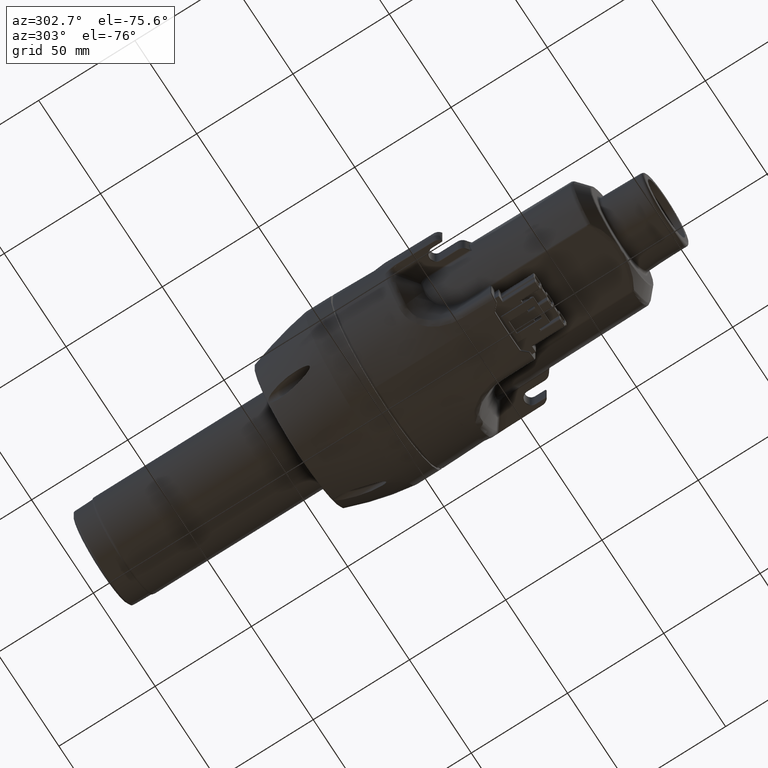
[diagram: clean part render]
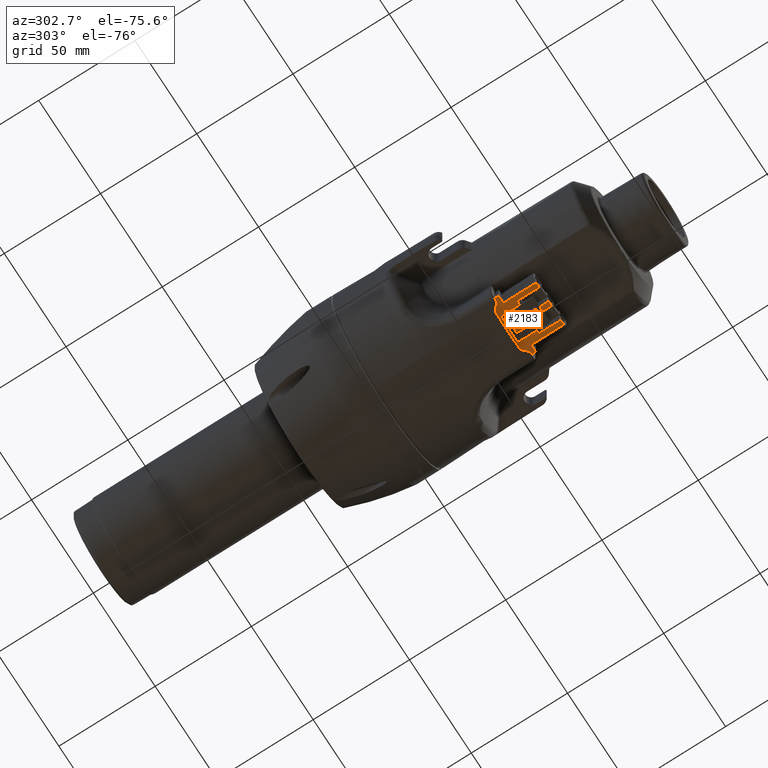
[diagram: same view with one face highlighted and labeled with its STEP entity id]
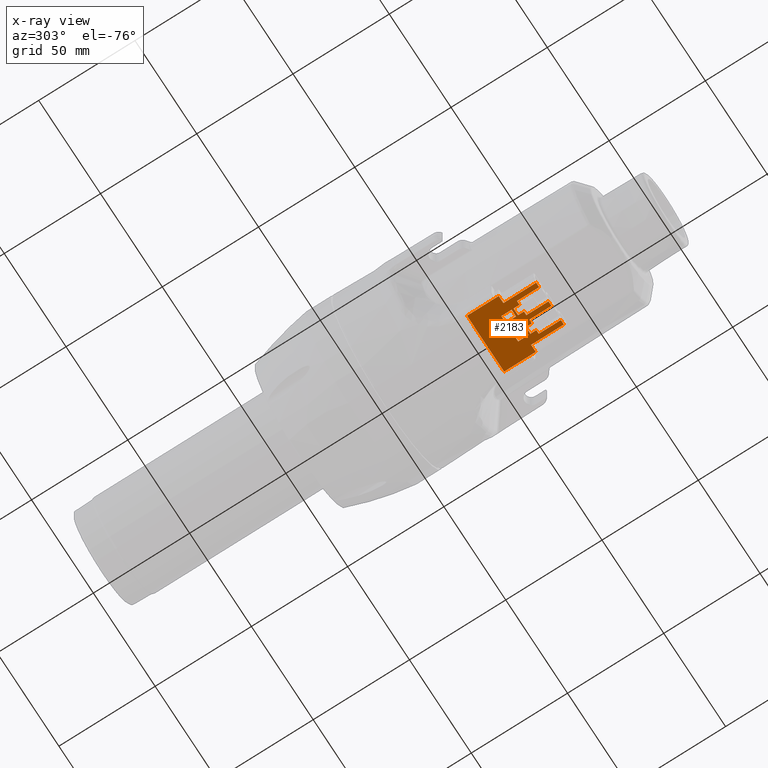
[diagram: x-ray of the same camera — body ghosted, the highlighted face saturated]
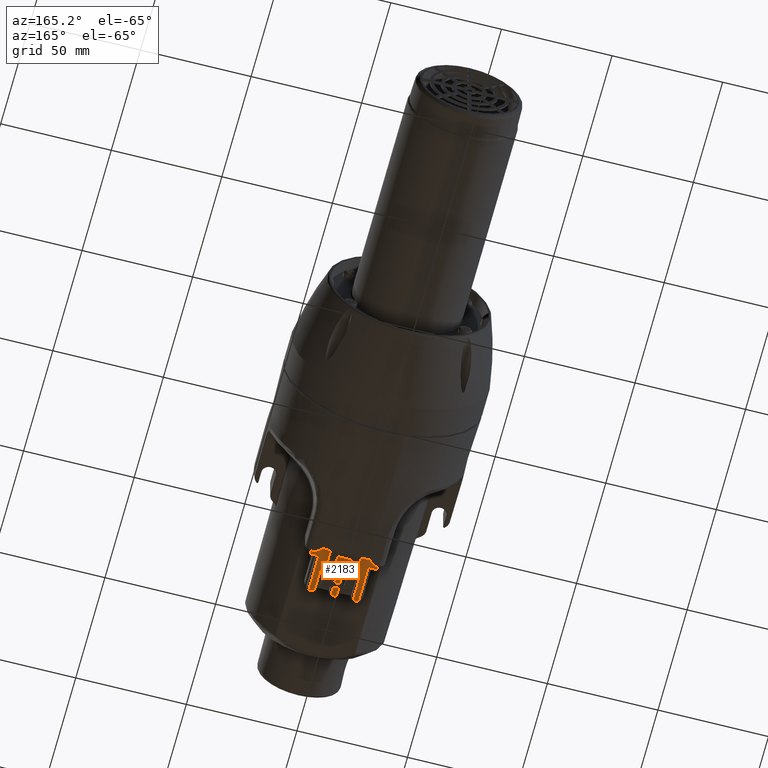
[diagram: same view with one face highlighted and labeled with its STEP entity id]
A machine part, auxiliary view. The second image highlights one B-rep face of the part: STEP entity #2183.
The next image is the same camera in x-ray: the body ghosted, the highlighted face saturated — about 0% of this face is hidden behind the body in this view.
A second angle (auxiliary view) of the same face is appended — the face is thin or edge-on in the first view.
In plain terms, the highlighted planar face has unit normal (0, 0, -1).
Its self-contained STEP definition (entity closure, byte-faithful):
#2183 = ADVANCED_FACE( '', ( #4686, #4687, #4688 ), #4689, .T. );
#4686 = FACE_OUTER_BOUND( '', #10891, .T. );
#4687 = FACE_BOUND( '', #10892, .T. );
#4688 = FACE_BOUND( '', #10893, .T. );
#4689 = PLANE( '', #10894 );
#10891 = EDGE_LOOP( '', ( #18675, #18676, #18677, #18678, #18679, #18680, #18681, #18682, #18683, #18684, #18685, #18686, #18687, #18688, #18689, #18690, #18691, #18692, #18693, #18694, #18695, #18696, #18697, #18698 ) );
#10892 = EDGE_LOOP( '', ( #18699, #18700, #18701, #18702 ) );
#10893 = EDGE_LOOP( '', ( #18703, #18704, #18705, #18706 ) );
#10894 = AXIS2_PLACEMENT_3D( '', #18707, #18708, #18709 );
#18675 = ORIENTED_EDGE( '', *, *, #23581, .F. );
#18676 = ORIENTED_EDGE( '', *, *, #22297, .F. );
#18677 = ORIENTED_EDGE( '', *, *, #22935, .T. );
#18678 = ORIENTED_EDGE( '', *, *, #21340, .T. );
#18679 = ORIENTED_EDGE( '', *, *, #23987, .F. );
#18680 = ORIENTED_EDGE( '', *, *, #23988, .T. );
#18681 = ORIENTED_EDGE( '', *, *, #23989, .F. );
#18682 = ORIENTED_EDGE( '', *, *, #23990, .T. );
#18683 = ORIENTED_EDGE( '', *, *, #22265, .F. );
#18684 = ORIENTED_EDGE( '', *, *, #23991, .T. );
#18685 = ORIENTED_EDGE( '', *, *, #23992, .T. );
#18686 = ORIENTED_EDGE( '', *, *, #21332, .T. );
#18687 = ORIENTED_EDGE( '', *, *, #21533, .F. );
#18688 = ORIENTED_EDGE( '', *, *, #22554, .T. );
#18689 = ORIENTED_EDGE( '', *, *, #21604, .F. );
#18690 = ORIENTED_EDGE( '', *, *, #23960, .T. );
#18691 = ORIENTED_EDGE( '', *, *, #21215, .T. );
#18692 = ORIENTED_EDGE( '', *, *, #22556, .T. );
#18693 = ORIENTED_EDGE( '', *, *, #22513, .T. );
#18694 = ORIENTED_EDGE( '', *, *, #21324, .T. );
#18695 = ORIENTED_EDGE( '', *, *, #23572, .F. );
#18696 = ORIENTED_EDGE( '', *, *, #22725, .F. );
#18697 = ORIENTED_EDGE( '', *, *, #23993, .T. );
#18698 = ORIENTED_EDGE( '', *, *, #23668, .T. );
#18699 = ORIENTED_EDGE( '', *, *, #21602, .F. );
#18700 = ORIENTED_EDGE( '', *, *, #23366, .T. );
#18701 = ORIENTED_EDGE( '', *, *, #21195, .T. );
#18702 = ORIENTED_EDGE( '', *, *, #21425, .F. );
#18703 = ORIENTED_EDGE( '', *, *, #22267, .F. );
#18704 = ORIENTED_EDGE( '', *, *, #22175, .F. );
#18705 = ORIENTED_EDGE( '', *, *, #23994, .F. );
#18706 = ORIENTED_EDGE( '', *, *, #23363, .T. );
#18707 = CARTESIAN_POINT( '', ( -15.0000000000010, -49.7000000000044, -40.1999999999916 ) );
#18708 = DIRECTION( '', ( 0.000000000000000, 0.000000000000000, -1.00000000000000 ) );
#18709 = DIRECTION( '', ( 0.000000000000000, -1.00000000000000, 0.000000000000000 ) );
#21195 = EDGE_CURVE( '', #24652, #24649, #24653, .T. );
#21215 = EDGE_CURVE( '', #24692, #24690, #24693, .T. );
#21324 = EDGE_CURVE( '', #24892, #24890, #24893, .T. );
#21332 = EDGE_CURVE( '', #24908, #24906, #24909, .T. );
#21340 = EDGE_CURVE( '', #24924, #24922, #24925, .T. );
#21425 = EDGE_CURVE( '', #25083, #24649, #25085, .T. );
#21533 = EDGE_CURVE( '', #25270, #24906, #25271, .T. );
#21602 = EDGE_CURVE( '', #25395, #25083, #25397, .T. );
#21604 = EDGE_CURVE( '', #25398, #25400, #25401, .T. );
#22175 = EDGE_CURVE( '', #26346, #26348, #26349, .T. );
#22265 = EDGE_CURVE( '', #26486, #26488, #26489, .T. );
#22267 = EDGE_CURVE( '', #26348, #26491, #26492, .T. );
#22297 = EDGE_CURVE( '', #26535, #26537, #26538, .T. );
#22513 = EDGE_CURVE( '', #26890, #24892, #26891, .T. );
#22554 = EDGE_CURVE( '', #25270, #25400, #26957, .T. );
#22556 = EDGE_CURVE( '', #24690, #26890, #26959, .T. );
#22725 = EDGE_CURVE( '', #27216, #27217, #27218, .T. );
#22935 = EDGE_CURVE( '', #26535, #24924, #27537, .T. );
#23363 = EDGE_CURVE( '', #28178, #26491, #28179, .T. );
#23366 = EDGE_CURVE( '', #25395, #24652, #28183, .T. );
#23572 = EDGE_CURVE( '', #27217, #24890, #28447, .T. );
#23581 = EDGE_CURVE( '', #26537, #28457, #28458, .T. );
#23668 = EDGE_CURVE( '', #28573, #28457, #28574, .T. );
#23960 = EDGE_CURVE( '', #25398, #24692, #28943, .F. );
#23987 = EDGE_CURVE( '', #28975, #24922, #28976, .T. );
#23988 = EDGE_CURVE( '', #28975, #28977, #28978, .T. );
#23989 = EDGE_CURVE( '', #28979, #28977, #28980, .T. );
#23990 = EDGE_CURVE( '', #28979, #26488, #28981, .F. );
#23991 = EDGE_CURVE( '', #26486, #28982, #28983, .T. );
#23992 = EDGE_CURVE( '', #28982, #24908, #28984, .T. );
#23993 = EDGE_CURVE( '', #27216, #28573, #28985, .T. );
#23994 = EDGE_CURVE( '', #28178, #26346, #28986, .T. );
#24649 = VERTEX_POINT( '', #30060 );
#24652 = VERTEX_POINT( '', #30064 );
#24653 = LINE( '', #30065, #30066 );
#24690 = VERTEX_POINT( '', #30115 );
#24692 = VERTEX_POINT( '', #30118 );
#24693 = LINE( '', #30119, #30120 );
#24890 = VERTEX_POINT( '', #30428 );
#24892 = VERTEX_POINT( '', #30430 );
#24893 = LINE( '', #30431, #30432 );
#24906 = VERTEX_POINT( '', #30448 );
#24908 = VERTEX_POINT( '', #30450 );
#24909 = LINE( '', #30451, #30452 );
#24922 = VERTEX_POINT( '', #30468 );
#24924 = VERTEX_POINT( '', #30470 );
#24925 = LINE( '', #30471, #30472 );
#25083 = VERTEX_POINT( '', #30679 );
#25085 = LINE( '', #30682, #30683 );
#25270 = VERTEX_POINT( '', #31003 );
#25271 = LINE( '', #31004, #31005 );
#25395 = VERTEX_POINT( '', #31273 );
#25397 = LINE( '', #31276, #31277 );
#25398 = VERTEX_POINT( '', #31278 );
#25400 = VERTEX_POINT( '', #31280 );
#25401 = LINE( '', #31281, #31282 );
#26346 = VERTEX_POINT( '', #32946 );
#26348 = VERTEX_POINT( '', #32949 );
#26349 = LINE( '', #32950, #32951 );
#26486 = VERTEX_POINT( '', #33188 );
#26488 = VERTEX_POINT( '', #33191 );
#26489 = LINE( '', #33192, #33193 );
#26491 = VERTEX_POINT( '', #33195 );
#26492 = LINE( '', #33196, #33197 );
#26535 = VERTEX_POINT( '', #33334 );
#26537 = VERTEX_POINT( '', #33336 );
#26538 = LINE( '', #33337, #33338 );
#26890 = VERTEX_POINT( '', #33936 );
#26891 = LINE( '', #33937, #33938 );
#26957 = LINE( '', #34148, #34149 );
#26959 = LINE( '', #34152, #34153 );
#27216 = VERTEX_POINT( '', #34570 );
#27217 = VERTEX_POINT( '', #34571 );
#27218 = LINE( '', #34572, #34573 );
#27537 = LINE( '', #35233, #35234 );
#28178 = VERTEX_POINT( '', #36208 );
#28179 = LINE( '', #36209, #36210 );
#28183 = LINE( '', #36216, #36217 );
#28447 = LINE( '', #36827, #36828 );
#28457 = VERTEX_POINT( '', #36841 );
#28458 = LINE( '', #36842, #36843 );
#28573 = VERTEX_POINT( '', #37036 );
#28574 = LINE( '', #37037, #37038 );
#28943 = LINE( '', #37906, #37907 );
#28975 = VERTEX_POINT( '', #37955 );
#28976 = LINE( '', #37956, #37957 );
#28977 = VERTEX_POINT( '', #37958 );
#28978 = LINE( '', #37959, #37960 );
#28979 = VERTEX_POINT( '', #37961 );
#28980 = LINE( '', #37962, #37963 );
#28981 = LINE( '', #37964, #37965 );
#28982 = VERTEX_POINT( '', #37966 );
#28983 = LINE( '', #37967, #37968 );
#28984 = LINE( '', #37969, #37970 );
#28985 = LINE( '', #37971, #37972 );
#28986 = LINE( '', #37973, #37974 );
#30060 = CARTESIAN_POINT( '', ( -6.75000000000094, -71.5825072261902, -40.1999999999916 ) );
#30064 = CARTESIAN_POINT( '', ( -6.75000000000094, -66.2605325527110, -40.1999999999916 ) );
#30065 = CARTESIAN_POINT( '', ( -6.75000000000094, -66.2605325527110, -40.1999999999916 ) );
#30066 = VECTOR( '', #38974, 1000.00000000000 );
#30115 = CARTESIAN_POINT( '', ( -6.75000000000094, -75.7000000000020, -40.1999999999916 ) );
#30118 = CARTESIAN_POINT( '', ( -6.75000000000094, -72.6179449471706, -40.1999999999916 ) );
#30119 = CARTESIAN_POINT( '', ( -6.75000000000094, -72.6179449471826, -40.1999999999916 ) );
#30120 = VECTOR( '', #39006, 1000.00000000000 );
#30428 = CARTESIAN_POINT( '', ( -11.2000000000085, -87.2000000000068, -40.1999999999916 ) );
#30430 = CARTESIAN_POINT( '', ( -8.79999999999274, -87.2000000000068, -40.1999999999916 ) );
#30431 = CARTESIAN_POINT( '', ( -8.79999999999274, -87.2000000000068, -40.1999999999916 ) );
#30432 = VECTOR( '', #39152, 1000.00000000000 );
#30448 = CARTESIAN_POINT( '', ( -1.20000000000688, -87.2000000000068, -40.1999999999916 ) );
#30450 = CARTESIAN_POINT( '', ( 1.20000000000688, -87.2000000000068, -40.1999999999916 ) );
#30451 = CARTESIAN_POINT( '', ( 1.20000000000688, -87.2000000000068, -40.1999999999916 ) );
#30452 = VECTOR( '', #39168, 1000.00000000000 );
#30468 = CARTESIAN_POINT( '', ( 8.79999999999274, -87.2000000000068, -40.1999999999916 ) );
#30470 = CARTESIAN_POINT( '', ( 11.2000000000085, -87.2000000000068, -40.1999999999916 ) );
#30471 = CARTESIAN_POINT( '', ( 11.2000000000085, -87.2000000000068, -40.1999999999916 ) );
#30472 = VECTOR( '', #39184, 1000.00000000000 );
#30679 = CARTESIAN_POINT( '', ( -3.15000000000010, -71.5825072261902, -40.1999999999916 ) );
#30682 = CARTESIAN_POINT( '', ( -3.15000000000010, -71.5825072261902, -40.1999999999916 ) );
#30683 = VECTOR( '', #39322, 1000.00000000000 );
#31003 = CARTESIAN_POINT( '', ( -1.19999999994389, -75.7000000000536, -40.1999999999916 ) );
#31004 = CARTESIAN_POINT( '', ( -1.19999999994389, -75.7000000000020, -40.1999999999916 ) );
#31005 = VECTOR( '', #39458, 1000.00000000000 );
#31273 = CARTESIAN_POINT( '', ( -3.15000000000010, -66.2605325527110, -40.1999999999916 ) );
#31276 = CARTESIAN_POINT( '', ( -3.15000000000010, -66.2605325527110, -40.1999999999916 ) );
#31277 = VECTOR( '', #39528, 1000.00000000000 );
#31278 = CARTESIAN_POINT( '', ( -3.15000000000010, -72.6179449471706, -40.1999999999916 ) );
#31280 = CARTESIAN_POINT( '', ( -3.15000000000010, -75.7000000000274, -40.1999999999916 ) );
#31281 = CARTESIAN_POINT( '', ( -3.15000000000010, -72.6180991071486, -40.1999999999916 ) );
#31282 = VECTOR( '', #39532, 1000.00000000000 );
#32946 = CARTESIAN_POINT( '', ( 6.85000000000054, -71.5825072261902, -40.1999999999916 ) );
#32949 = CARTESIAN_POINT( '', ( 3.24999999999970, -71.5825072261902, -40.1999999999916 ) );
#32950 = CARTESIAN_POINT( '', ( 6.85000000000054, -71.5825072261902, -40.1999999999916 ) );
#32951 = VECTOR( '', #40271, 1000.00000000000 );
#33188 = CARTESIAN_POINT( '', ( 3.24999999999970, -75.7000000000274, -40.1999999999916 ) );
#33191 = CARTESIAN_POINT( '', ( 3.24999999999970, -72.6179449471767, -40.1999999999886 ) );
#33192 = CARTESIAN_POINT( '', ( 3.24999999999970, -75.7000000000274, -40.1999999999916 ) );
#33193 = VECTOR( '', #40382, 1000.00000000000 );
#33195 = CARTESIAN_POINT( '', ( 3.24999999999970, -66.2605325527110, -40.1999999999916 ) );
#33196 = CARTESIAN_POINT( '', ( 3.24999999999970, -71.5825072261902, -40.1999999999916 ) );
#33197 = VECTOR( '', #40386, 1000.00000000000 );
#33334 = CARTESIAN_POINT( '', ( 11.2000000000136, -70.1999999999986, -40.1999999999916 ) );
#33336 = CARTESIAN_POINT( '', ( 15.0000000000010, -70.1999999999986, -40.1999999999916 ) );
#33337 = CARTESIAN_POINT( '', ( 11.2000000000136, -70.1999999999986, -40.1999999999916 ) );
#33338 = VECTOR( '', #40411, 1000.00000000000 );
#33936 = CARTESIAN_POINT( '', ( -8.80000000005624, -75.7000000000536, -40.1999999999916 ) );
#33937 = CARTESIAN_POINT( '', ( -8.80000000005624, -75.7000000000020, -40.1999999999916 ) );
#33938 = VECTOR( '', #40691, 1000.00000000000 );
#34148 = CARTESIAN_POINT( '', ( -1.19999999994389, -75.7000000000020, -40.1999999999916 ) );
#34149 = VECTOR( '', #40737, 1000.00000000000 );
#34152 = CARTESIAN_POINT( '', ( -6.75000000000094, -75.7000000000020, -40.1999999999916 ) );
#34153 = VECTOR( '', #40739, 1000.00000000000 );
#34570 = CARTESIAN_POINT( '', ( -15.0000000000010, -70.1999999999986, -40.1999999999916 ) );
#34571 = CARTESIAN_POINT( '', ( -11.2000000000136, -70.1999999999986, -40.1999999999916 ) );
#34572 = CARTESIAN_POINT( '', ( -15.0000000000010, -70.1999999999986, -40.1999999999916 ) );
#34573 = VECTOR( '', #40937, 1000.00000000000 );
#35233 = CARTESIAN_POINT( '', ( 11.2000000000136, -70.1999999999986, -40.1999999999916 ) );
#35234 = VECTOR( '', #41166, 1000.00000000000 );
#36208 = CARTESIAN_POINT( '', ( 6.85000000000054, -66.2605325527364, -40.1999999999916 ) );
#36209 = CARTESIAN_POINT( '', ( 6.85000000000054, -66.2605325527364, -40.1999999999916 ) );
#36210 = VECTOR( '', #41838, 1000.00000000000 );
#36216 = CARTESIAN_POINT( '', ( -3.15000000000010, -66.2605325527110, -40.1999999999916 ) );
#36217 = VECTOR( '', #41841, 1000.00000000000 );
#36827 = CARTESIAN_POINT( '', ( -11.2000000000136, -70.1999999999986, -40.1999999999916 ) );
#36828 = VECTOR( '', #42038, 1000.00000000000 );
#36841 = CARTESIAN_POINT( '', ( 15.0000000000010, -53.6999999999884, -40.1999999999916 ) );
#36842 = CARTESIAN_POINT( '', ( 15.0000000000010, -70.1999999999986, -40.1999999999916 ) );
#36843 = VECTOR( '', #42045, 1000.00000000000 );
#37036 = CARTESIAN_POINT( '', ( -15.0000000000010, -53.6999999999884, -40.1999999999916 ) );
#37037 = CARTESIAN_POINT( '', ( -15.0000000000010, -53.6999999999884, -40.1999999999916 ) );
#37038 = VECTOR( '', #42138, 1000.00000000000 );
#37906 = CARTESIAN_POINT( '', ( -3.15000000000010, -72.6179449471706, -40.1999999999916 ) );
#37907 = VECTOR( '', #42396, 1000.00000000000 );
#37955 = CARTESIAN_POINT( '', ( 8.80000000005624, -75.7000000000536, -40.1999999999916 ) );
#37956 = CARTESIAN_POINT( '', ( 8.80000000005624, -75.7000000000020, -40.1999999999916 ) );
#37957 = VECTOR( '', #42419, 1000.00000000000 );
#37958 = CARTESIAN_POINT( '', ( 6.85000000000054, -75.7000000000274, -40.1999999999916 ) );
#37959 = CARTESIAN_POINT( '', ( 8.80000000005624, -75.7000000000020, -40.1999999999916 ) );
#37960 = VECTOR( '', #42420, 1000.00000000000 );
#37961 = CARTESIAN_POINT( '', ( 6.85000000000054, -72.6179449471706, -40.1999999999916 ) );
#37962 = CARTESIAN_POINT( '', ( 6.85000000000054, -72.6180991071486, -40.1999999999916 ) );
#37963 = VECTOR( '', #42421, 1000.00000000000 );
#37964 = CARTESIAN_POINT( '', ( 6.85000000000054, -72.6179449471706, -40.1999999999916 ) );
#37965 = VECTOR( '', #42422, 1000.00000000000 );
#37966 = CARTESIAN_POINT( '', ( 1.19999999994389, -75.7000000000592, -40.1999999999916 ) );
#37967 = CARTESIAN_POINT( '', ( 3.24999999999970, -75.7000000000274, -40.1999999999916 ) );
#37968 = VECTOR( '', #42423, 1000.00000000000 );
#37969 = CARTESIAN_POINT( '', ( 1.19999999994389, -75.7000000000020, -40.1999999999916 ) );
#37970 = VECTOR( '', #42424, 1000.00000000000 );
#37971 = CARTESIAN_POINT( '', ( -15.0000000000010, -70.1999999999986, -40.1999999999916 ) );
#37972 = VECTOR( '', #42425, 1000.00000000000 );
#37973 = CARTESIAN_POINT( '', ( 6.85000000000054, -66.2605325527364, -40.1999999999916 ) );
#37974 = VECTOR( '', #42426, 1000.00000000000 );
#38974 = DIRECTION( '', ( 0.000000000000000, -1.00000000000000, -7.48179560719300E-013 ) );
#39006 = DIRECTION( '', ( 0.000000000000000, -1.00000000000000, -1.90678299021500E-012 ) );
#39152 = DIRECTION( '', ( -1.00000000000000, 0.000000000000000, 0.000000000000000 ) );
#39168 = DIRECTION( '', ( -1.00000000000000, 0.000000000000000, 0.000000000000000 ) );
#39184 = DIRECTION( '', ( -1.00000000000000, 0.000000000000000, 0.000000000000000 ) );
#39322 = DIRECTION( '', ( -1.00000000000000, 0.000000000000000, 0.000000000000000 ) );
#39458 = DIRECTION( '', ( -5.46534025765300E-012, -1.00000000000000, 5.11026969532900E-013 ) );
#39528 = DIRECTION( '', ( 0.000000000000000, -1.00000000000000, -7.48179560719600E-013 ) );
#39532 = DIRECTION( '', ( 0.000000000000000, -1.00000000000000, 0.000000000000000 ) );
#40271 = DIRECTION( '', ( -1.00000000000000, 1.94264357686600E-013, 0.000000000000000 ) );
#40382 = DIRECTION( '', ( 0.000000000000000, 1.00000000000000, 1.90678299020300E-012 ) );
#40386 = DIRECTION( '', ( 0.000000000000000, 1.00000000000000, 7.48179560719400E-013 ) );
#40411 = DIRECTION( '', ( 1.00000000000000, 0.000000000000000, 0.000000000000000 ) );
#40691 = DIRECTION( '', ( 5.46865065308900E-012, -1.00000000000000, 5.11026969532900E-013 ) );
#40737 = DIRECTION( '', ( -1.00000000000000, -1.39928182996700E-011, 3.01374879459500E-012 ) );
#40739 = DIRECTION( '', ( -1.00000000000000, 0.000000000000000, 0.000000000000000 ) );
#40937 = DIRECTION( '', ( 1.00000000000000, 0.000000000000000, 0.000000000000000 ) );
#41166 = DIRECTION( '', ( -4.01015821856300E-013, -1.00000000000000, 0.000000000000000 ) );
#41838 = DIRECTION( '', ( -1.00000000000000, 2.52856994601700E-012, 0.000000000000000 ) );
#41841 = DIRECTION( '', ( -1.00000000000000, 6.14126033977000E-013, 0.000000000000000 ) );
#42038 = DIRECTION( '', ( 4.00435240521600E-013, -1.00000000000000, 0.000000000000000 ) );
#42045 = DIRECTION( '', ( 0.000000000000000, 1.00000000000000, 0.000000000000000 ) );
#42138 = DIRECTION( '', ( 1.00000000000000, 0.000000000000000, 0.000000000000000 ) );
#42396 = DIRECTION( '', ( 1.00000000000000, 0.000000000000000, 0.000000000000000 ) );
#42419 = DIRECTION( '', ( -5.46681154451300E-012, -1.00000000000000, 5.11026969532900E-013 ) );
#42420 = DIRECTION( '', ( -1.00000000000000, -1.39986028463000E-011, 3.01374879459600E-012 ) );
#42421 = DIRECTION( '', ( 0.000000000000000, -1.00000000000000, 0.000000000000000 ) );
#42422 = DIRECTION( '', ( 1.00000000000000, 0.000000000000000, 0.000000000000000 ) );
#42423 = DIRECTION( '', ( -1.00000000000000, 6.91098127216400E-012, 0.000000000000000 ) );
#42424 = DIRECTION( '', ( 5.47016791766400E-012, -1.00000000000000, 5.11026969532900E-013 ) );
#42425 = DIRECTION( '', ( 0.000000000000000, 1.00000000000000, 0.000000000000000 ) );
#42426 = DIRECTION( '', ( 0.000000000000000, -1.00000000000000, -7.48179560720600E-013 ) );